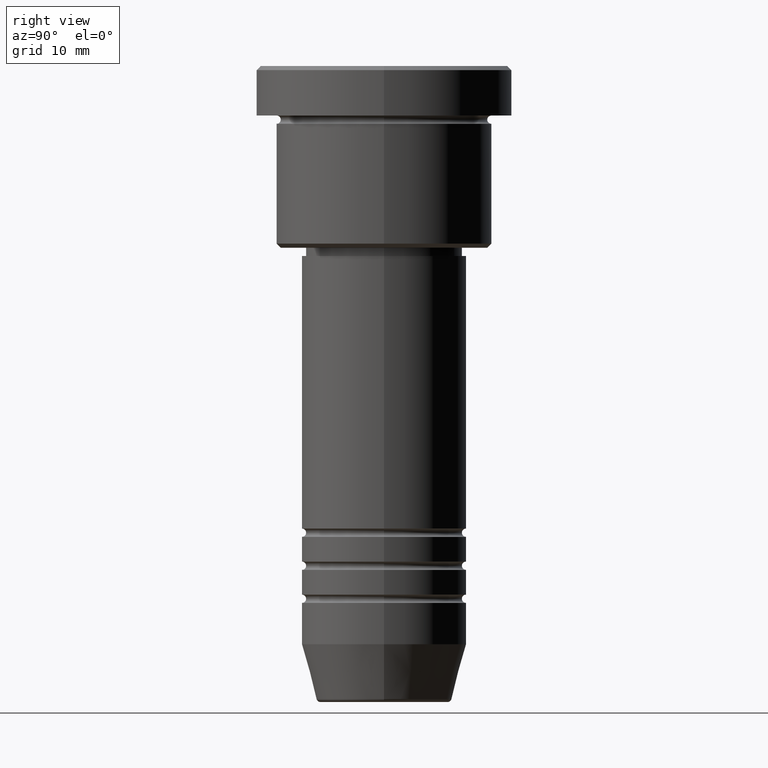
[diagram: clean part render]
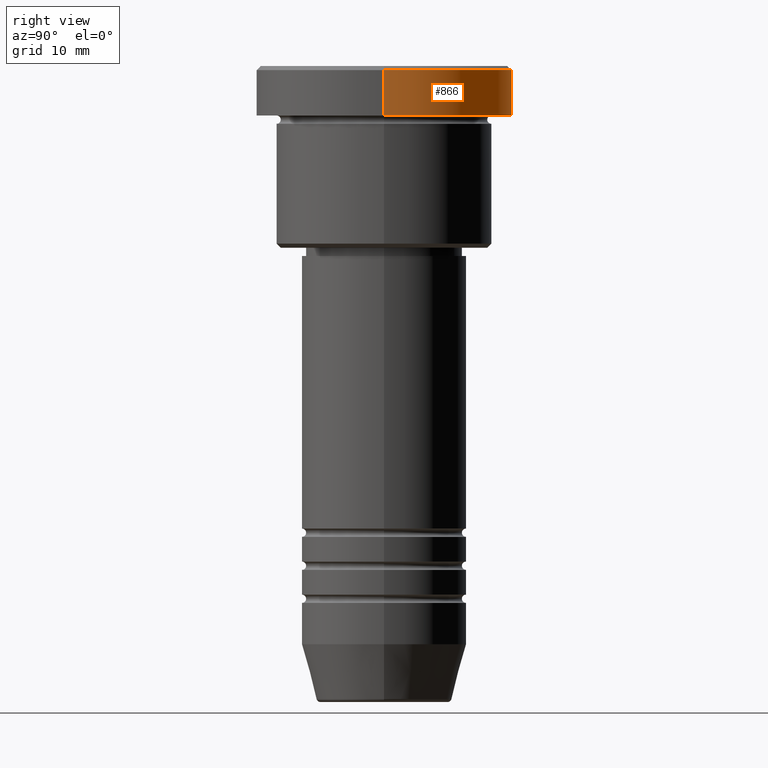
[diagram: same view with one face highlighted and labeled with its STEP entity id]
A machine part, right view. The second image highlights one B-rep face of the part: STEP entity #866.
In plain terms, the highlighted cylindrical surface (partial cylindrical patch) has radius 15.5 mm, axis along (-0, -0, 1).
Its self-contained STEP definition (entity closure, byte-faithful):
#10 = CIRCLE ( 'NONE', #299, 15.50000000000000000 ) ;
#16 = EDGE_CURVE ( 'NONE', #52, #610, #960, .T. ) ;
#52 = VERTEX_POINT ( 'NONE', #440 ) ;
#92 = DIRECTION ( 'NONE',  ( -0.000000000000000000, -0.000000000000000000, 1.000000000000000000 ) ) ;
#179 = ORIENTED_EDGE ( 'NONE', *, *, #986, .T. ) ;
#182 = DIRECTION ( 'NONE',  ( -0.000000000000000000, -0.000000000000000000, 1.000000000000000000 ) ) ;
#286 = CARTESIAN_POINT ( 'NONE',  ( 15.50000000000000000, 0.000000000000000000, -0.4999999999999987232 ) ) ;
#299 = AXIS2_PLACEMENT_3D ( 'NONE', #1054, #401, #863 ) ;
#318 = DIRECTION ( 'NONE',  ( -0.000000000000000000, -0.000000000000000000, 1.000000000000000000 ) ) ;
#327 = ORIENTED_EDGE ( 'NONE', *, *, #1170, .F. ) ;
#359 = VECTOR ( 'NONE', #318, 1000.000000000000000 ) ;
#368 = EDGE_CURVE ( 'NONE', #495, #670, #10, .T. ) ;
#401 = DIRECTION ( 'NONE',  ( 0.000000000000000000, 0.000000000000000000, -1.000000000000000000 ) ) ;
#440 = CARTESIAN_POINT ( 'NONE',  ( 15.50000000000000000, 0.000000000000000000, -5.999999999999995559 ) ) ;
#452 = CYLINDRICAL_SURFACE ( 'NONE', #1100, 15.50000000000000000 ) ;
#457 = DIRECTION ( 'NONE',  ( -0.000000000000000000, -0.000000000000000000, 1.000000000000000000 ) ) ;
#495 = VERTEX_POINT ( 'NONE', #1047 ) ;
#519 = CARTESIAN_POINT ( 'NONE',  ( -15.50000000000000000, 1.898202538678397557E-15, -5.999999999999995559 ) ) ;
#532 = CARTESIAN_POINT ( 'NONE',  ( 0.000000000000000000, 0.000000000000000000, 0.000000000000000000 ) ) ;
#597 = AXIS2_PLACEMENT_3D ( 'NONE', #703, #92, #896 ) ;
#610 = VERTEX_POINT ( 'NONE', #519 ) ;
#625 = VECTOR ( 'NONE', #182, 1000.000000000000000 ) ;
#627 = FACE_OUTER_BOUND ( 'NONE', #789, .T. ) ;
#670 = VERTEX_POINT ( 'NONE', #286 ) ;
#686 = LINE ( 'NONE', #954, #359 ) ;
#703 = CARTESIAN_POINT ( 'NONE',  ( 0.000000000000000000, 0.000000000000000000, -5.999999999999995559 ) ) ;
#722 = CARTESIAN_POINT ( 'NONE',  ( -15.50000000000000000, 1.898202538678397557E-15, 0.000000000000000000 ) ) ;
#789 = EDGE_LOOP ( 'NONE', ( #851, #179, #846, #327 ) ) ;
#808 = DIRECTION ( 'NONE',  ( 1.000000000000000000, 0.000000000000000000, 0.000000000000000000 ) ) ;
#846 = ORIENTED_EDGE ( 'NONE', *, *, #368, .T. ) ;
#851 = ORIENTED_EDGE ( 'NONE', *, *, #16, .T. ) ;
#863 = DIRECTION ( 'NONE',  ( 1.000000000000000000, 0.000000000000000000, 0.000000000000000000 ) ) ;
#866 = ADVANCED_FACE ( 'NONE', ( #627 ), #452, .T. ) ;
#896 = DIRECTION ( 'NONE',  ( 1.000000000000000000, 0.000000000000000000, 0.000000000000000000 ) ) ;
#954 = CARTESIAN_POINT ( 'NONE',  ( 15.50000000000000000, 0.000000000000000000, 0.000000000000000000 ) ) ;
#960 = CIRCLE ( 'NONE', #597, 15.50000000000000000 ) ;
#986 = EDGE_CURVE ( 'NONE', #610, #495, #1006, .T. ) ;
#1006 = LINE ( 'NONE', #722, #625 ) ;
#1047 = CARTESIAN_POINT ( 'NONE',  ( -15.50000000000000000, 1.898202538678397557E-15, -0.4999999999999987232 ) ) ;
#1054 = CARTESIAN_POINT ( 'NONE',  ( 0.000000000000000000, 0.000000000000000000, -0.4999999999999987232 ) ) ;
#1100 = AXIS2_PLACEMENT_3D ( 'NONE', #532, #457, #808 ) ;
#1170 = EDGE_CURVE ( 'NONE', #52, #670, #686, .T. ) ;